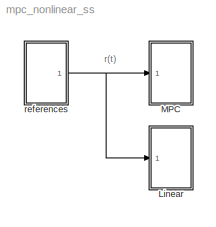
MODEL mpc_nonlinear_ss
KIND model
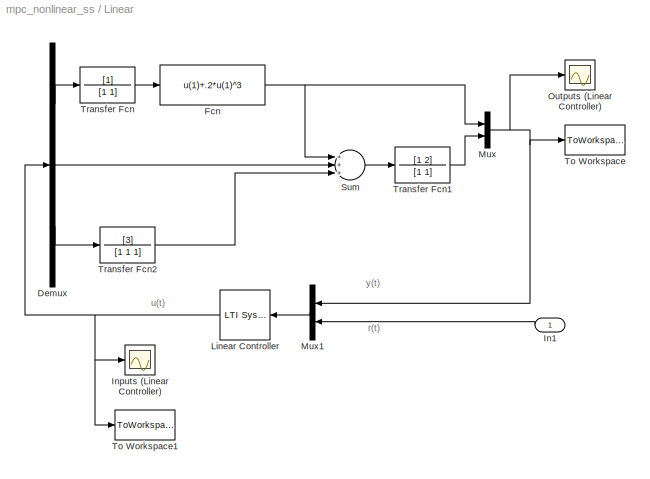
BLOCK [SubSystem] Linear
  MinAlgLoopOccurrences = off
  Ports = [1]
  PropExecContextAcrossSSBoundary = on
  RTWSystemCode = Auto
  TreatAsAtomicUnit = off
BLOCK [Demux] Linear/Demux
  Outputs = 3
  Ports = [1, 3]
BLOCK [Fcn] Linear/Fcn
  Expr = u(1)+.2*u(1)^3
BLOCK [Inport] Linear/In1
  IconDisplay = Port number
  LatchInput = off
BLOCK [Scope] Linear/Inputs (Linear Controller)
  DataFormat = Structure
  NumInputPorts = 1
  Ports = [1]
  TimeRange = 8
  YMax = 2
  YMin = -2
BLOCK [Reference] Linear/Linear Controller  REF=cstblocks/LTI System
  IC = 0
  Ports = [1, 1]
  ShowPortLabels = on
  SourceBlock = cstblocks/LTI System
  SourceType = LTI Block
  sys = LTIMPC
BLOCK [Mux] Linear/Mux
  DisplayOption = bar
  Inputs = 2
  Ports = [2, 1]
BLOCK [Mux] Linear/Mux1
  DisplayOption = bar
  Inputs = 2
  Ports = [2, 1]
BLOCK [Scope] Linear/Outputs (Linear Controller)
  DataFormat = Structure
  NumInputPorts = 1
  Ports = [1]
  TimeRange = 8
  YMax = 1.5
  YMin = -0.5
  ZoomMode = yonly
BLOCK [Sum] Linear/Sum
  Inputs = +++
  Ports = [3, 1]
BLOCK [ToWorkspace] Linear/To Workspace
  MaxDataPoints = Inf
  SampleTime = -1
  SaveFormat = Array
  VariableName = ylin
BLOCK [ToWorkspace] Linear/To Workspace1
  MaxDataPoints = Inf
  SampleTime = -1
  SaveFormat = Array
  VariableName = ulin
BLOCK [TransferFcn] Linear/Transfer Fcn
  Denominator = [1 1]
BLOCK [TransferFcn] Linear/Transfer Fcn1
  Numerator = [1 2]
BLOCK [TransferFcn] Linear/Transfer Fcn2
  Denominator = [1 1 1]
  Numerator = [3]
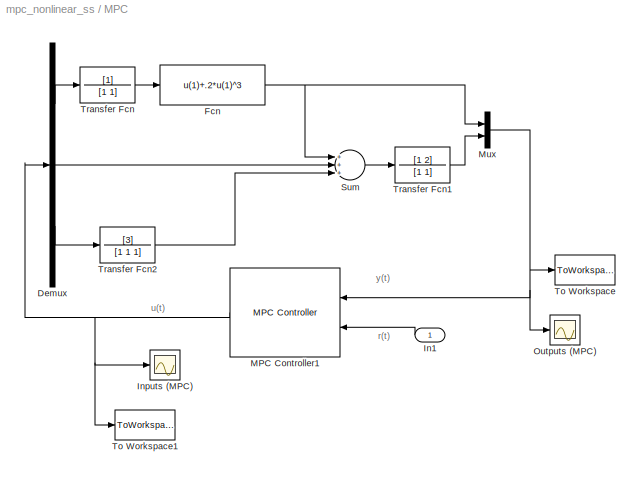
BLOCK [SubSystem] MPC
  MinAlgLoopOccurrences = off
  Ports = [1]
  PropExecContextAcrossSSBoundary = on
  RTWSystemCode = Auto
  TreatAsAtomicUnit = off
BLOCK [Demux] MPC/Demux
  Outputs = 3
  Ports = [1, 3]
BLOCK [Fcn] MPC/Fcn
  Expr = u(1)+.2*u(1)^3
BLOCK [Inport] MPC/In1
  IconDisplay = Port number
  LatchInput = off
BLOCK [Scope] MPC/Inputs (MPC)
  DataFormat = Structure
  NumInputPorts = 1
  Ports = [1]
  TimeRange = 8
  YMax = 2
  YMin = -2
BLOCK [Reference] MPC/MPC Controller1  REF=mpclib/MPC Controller  (lib defined in mdl_ae329e0e0455)
  Ports = [2, 1]
  ShowPortLabels = on
  SourceBlock = mpclib/MPC Controller
  SourceType = MPC
  from_project = off
  md_from_ws = off
  md_inport = off
  md_preview = on
  md_signal_name = []
  mpcobj = MPCobj
  n_mv = 0
  project_file = MPCtask.mat
  ref_from_ws = off
  ref_preview = on
  ref_signal_name = []
  x0 = []
BLOCK [Mux] MPC/Mux
  DisplayOption = bar
  Inputs = 2
  Ports = [2, 1]
BLOCK [Scope] MPC/Outputs (MPC)
  DataFormat = Structure
  NumInputPorts = 1
  Ports = [1]
  TimeRange = 8
  YMax = 1.5
  YMin = -0.5
  ZoomMode = yonly
BLOCK [Sum] MPC/Sum
  Inputs = +++
  Ports = [3, 1]
BLOCK [ToWorkspace] MPC/To Workspace
  MaxDataPoints = Inf
  SampleTime = -1
  SaveFormat = Array
  VariableName = yqp
BLOCK [ToWorkspace] MPC/To Workspace1
  MaxDataPoints = Inf
  SampleTime = -1
  SaveFormat = Array
  VariableName = uqp
BLOCK [TransferFcn] MPC/Transfer Fcn
  Denominator = [1 1]
BLOCK [TransferFcn] MPC/Transfer Fcn1
  Numerator = [1 2]
BLOCK [TransferFcn] MPC/Transfer Fcn2
  Denominator = [1 1 1]
  Numerator = [3]
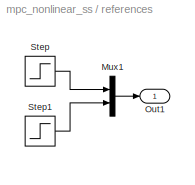
BLOCK [SubSystem] references
  MinAlgLoopOccurrences = off
  Ports = [0, 1]
  PropExecContextAcrossSSBoundary = on
  RTWSystemCode = Auto
  TreatAsAtomicUnit = off
BLOCK [Mux] references/Mux1
  DisplayOption = bar
  Inputs = 2
  Ports = [2, 1]
BLOCK [Outport] references/Out1
  BusOutputAsStruct = off
  IconDisplay = Port number
BLOCK [Step] references/Step
  After = 0
  Before = refs(1)
  SampleTime = 0
  Time = 4
BLOCK [Step] references/Step1
  After = refs(2)
  SampleTime = 0
  Time = 0
ANNOTATION (root): r(t)
ANNOTATION Linear: r(t)
ANNOTATION Linear: u(t)
ANNOTATION Linear: y(t)
ANNOTATION MPC: r(t)
ANNOTATION MPC: u(t)
ANNOTATION MPC: y(t)
LINE Linear/Demux:1 -> Linear/Transfer Fcn:1
LINE Linear/Demux:2 -> Linear/Sum:2
LINE Linear/Demux:3 -> Linear/Transfer Fcn2:1
NET Linear/Fcn:1 -> Linear/Mux:1, Linear/Sum:1
LINE Linear/In1:1 -> Linear/Mux1:2
NET Linear/Linear Controller:1 -> Linear/Demux:1, Linear/Inputs (Linear Controller):1, Linear/To Workspace1:1
LINE Linear/Mux1:1 -> Linear/Linear Controller:1
NET Linear/Mux:1 -> Linear/Mux1:1, Linear/Outputs (Linear Controller):1, Linear/To Workspace:1
LINE Linear/Sum:1 -> Linear/Transfer Fcn1:1
LINE Linear/Transfer Fcn1:1 -> Linear/Mux:2
LINE Linear/Transfer Fcn2:1 -> Linear/Sum:3
LINE Linear/Transfer Fcn:1 -> Linear/Fcn:1
LINE MPC/Demux:1 -> MPC/Transfer Fcn:1
LINE MPC/Demux:2 -> MPC/Sum:2
LINE MPC/Demux:3 -> MPC/Transfer Fcn2:1
NET MPC/Fcn:1 -> MPC/Mux:1, MPC/Sum:1
LINE MPC/In1:1 -> MPC/MPC Controller1:2
NET MPC/MPC Controller1:1 -> MPC/Demux:1, MPC/Inputs (MPC):1, MPC/To Workspace1:1
NET MPC/Mux:1 -> MPC/MPC Controller1:1, MPC/Outputs (MPC):1, MPC/To Workspace:1
LINE MPC/Sum:1 -> MPC/Transfer Fcn1:1
LINE MPC/Transfer Fcn1:1 -> MPC/Mux:2
LINE MPC/Transfer Fcn2:1 -> MPC/Sum:3
LINE MPC/Transfer Fcn:1 -> MPC/Fcn:1
LINE references/Mux1:1 -> references/Out1:1
LINE references/Step1:1 -> references/Mux1:2
LINE references/Step:1 -> references/Mux1:1
NET references:1 -> Linear:1, MPC:1
note: NET lines group one-source signal fan-out (src -> all destinations, sorted); 1:1 wires keep LINE
